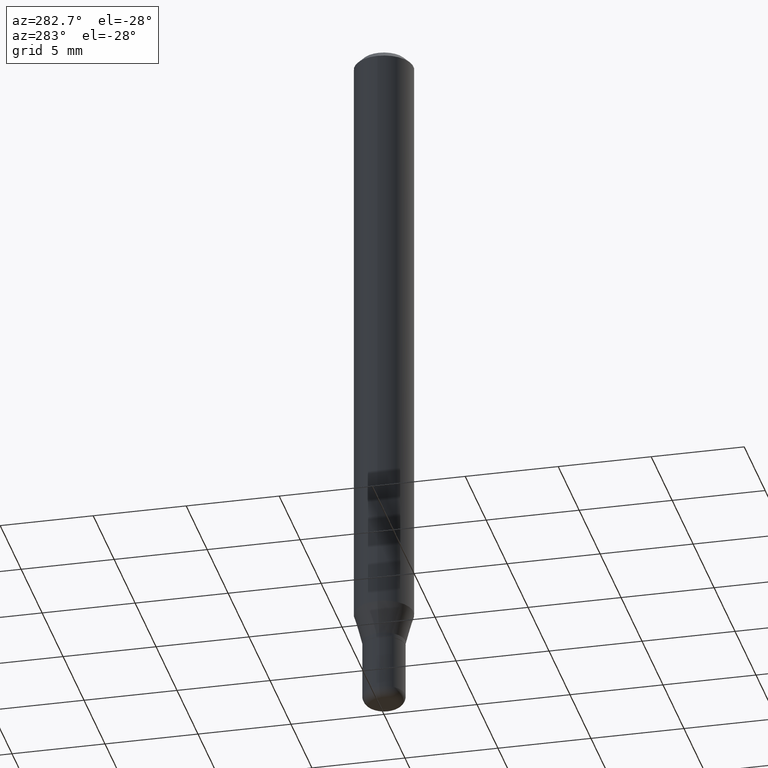
[diagram: clean part render]
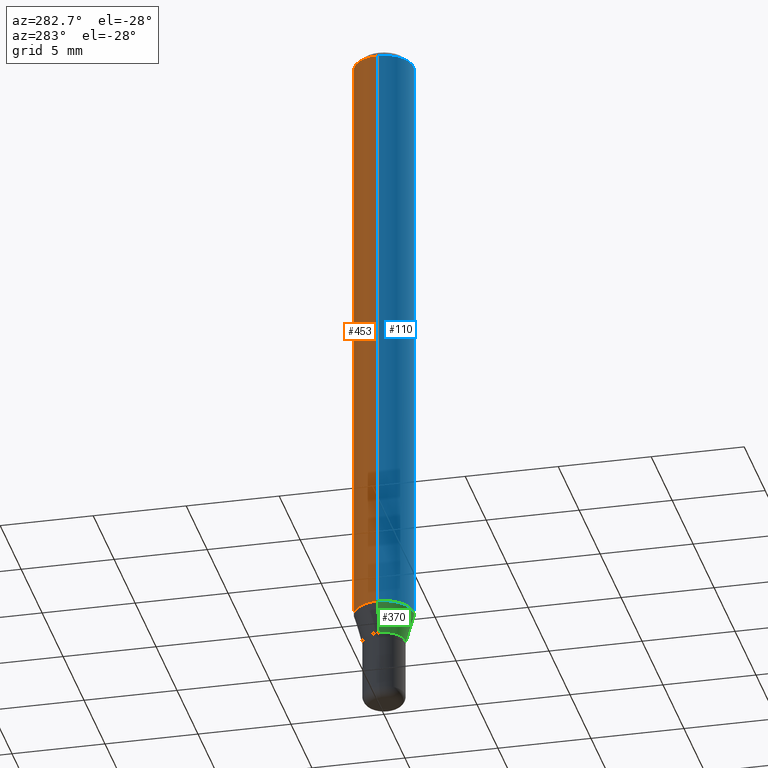
[diagram: same view with three faces highlighted in distinct colors, each labeled with its STEP entity id]
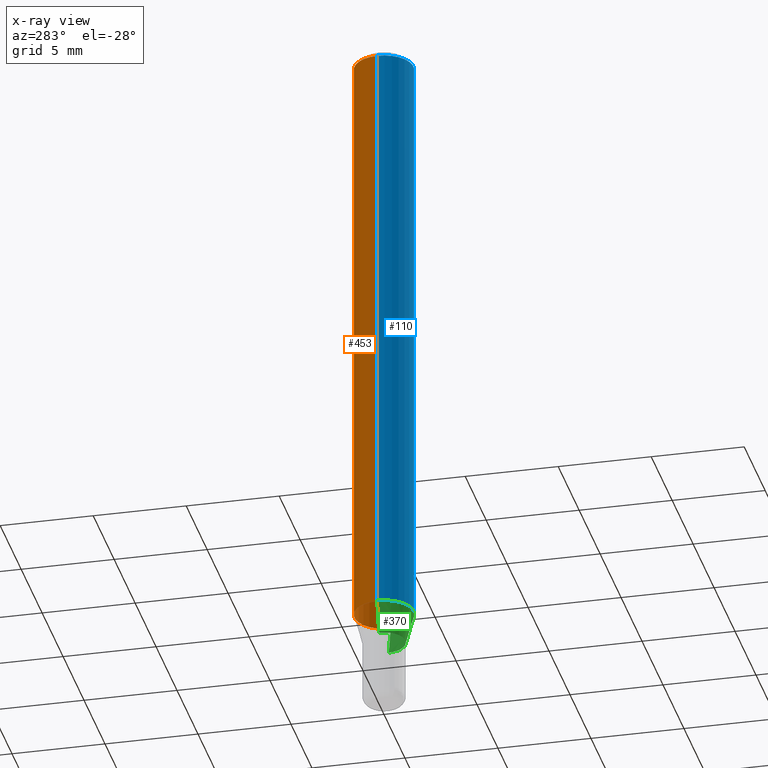
[diagram: x-ray of the same camera — body ghosted, the three highlighted faces saturated]
A machine part, auxiliary view with three faces highlighted in distinct colors.
The next image is the same camera in x-ray (body ghosted, the three faces saturated) — at least one of them is partly hidden behind the body in this view.
Their STEP definitions:

[orange] entity #453 — the highlighted cylindrical surface (edge-blend (fillet) strip) has radius 1.5875 mm, axis along (-0, 0, 1).
#15 = AXIS2_PLACEMENT_3D ( 'NONE', #108, #198, #436 ) ;
#21 = EDGE_CURVE ( 'NONE', #320, #77, #515, .T. ) ;
#34 = AXIS2_PLACEMENT_3D ( 'NONE', #141, #487, #296 ) ;
#48 = ORIENTED_EDGE ( 'NONE', *, *, #263, .T. ) ;
#54 = DIRECTION ( 'NONE',  ( -2.445468806185136597E-29, 3.491481338843145583E-15, 1.000000000000000000 ) ) ;
#61 = CARTESIAN_POINT ( 'NONE',  ( 0.000000000000000000, 0.000000000000000000, 0.000000000000000000 ) ) ;
#77 = VERTEX_POINT ( 'NONE', #254 ) ;
#87 = LINE ( 'NONE', #392, #278 ) ;
#99 = CYLINDRICAL_SURFACE ( 'NONE', #175, 0.06250000000000000000 ) ;
#108 = CARTESIAN_POINT ( 'NONE',  ( 3.153894490303225812E-29, -4.502925463503242152E-15, -1.289689110867545008 ) ) ;
#126 = VERTEX_POINT ( 'NONE', #307 ) ;
#132 = CARTESIAN_POINT ( 'NONE',  ( 0.06250000000000000000, -4.888073874380378612E-16, -0.01499999999999970281 ) ) ;
#141 = CARTESIAN_POINT ( 'NONE',  ( 3.668203209277632395E-31, -5.237222008264614861E-17, -0.01499999999999970281 ) ) ;
#144 = DIRECTION ( 'NONE',  ( -2.445468806185136877E-29, 3.491481338843145188E-15, 1.000000000000000000 ) ) ;
#175 = AXIS2_PLACEMENT_3D ( 'NONE', #61, #54, #418 ) ;
#190 = LINE ( 'NONE', #341, #287 ) ;
#198 = DIRECTION ( 'NONE',  ( -2.445468806185136597E-29, 3.491481338843145583E-15, 1.000000000000000000 ) ) ;
#204 = EDGE_CURVE ( 'NONE', #397, #77, #190, .T. ) ;
#227 = EDGE_LOOP ( 'NONE', ( #48, #489, #237, #354 ) ) ;
#237 = ORIENTED_EDGE ( 'NONE', *, *, #21, .F. ) ;
#254 = CARTESIAN_POINT ( 'NONE',  ( -0.06250000000000000000, -1.833559631942881408E-15, -0.01499999999999970281 ) ) ;
#263 = EDGE_CURVE ( 'NONE', #126, #397, #497, .T. ) ;
#278 = VECTOR ( 'NONE', #360, 39.37007874015748143 ) ;
#287 = VECTOR ( 'NONE', #144, 39.37007874015748143 ) ;
#296 = DIRECTION ( 'NONE',  ( 1.000000000000000000, -6.982962677686266711E-15, 0.000000000000000000 ) ) ;
#307 = CARTESIAN_POINT ( 'NONE',  ( 0.06250000000000000000, -4.939360630858633822E-15, -1.289689110867545008 ) ) ;
#320 = VERTEX_POINT ( 'NONE', #132 ) ;
#341 = CARTESIAN_POINT ( 'NONE',  ( -0.06250000000000000000, 4.440892098500626162E-16, -3.074334431409316114E-30 ) ) ;
#354 = ORIENTED_EDGE ( 'NONE', *, *, #355, .F. ) ;
#355 = EDGE_CURVE ( 'NONE', #126, #320, #87, .T. ) ;
#360 = DIRECTION ( 'NONE',  ( -2.445468806185136877E-29, 3.491481338843145188E-15, 1.000000000000000000 ) ) ;
#392 = CARTESIAN_POINT ( 'NONE',  ( 0.06250000000000000000, -4.364351673553916694E-16, 3.047610484872459871E-30 ) ) ;
#397 = VERTEX_POINT ( 'NONE', #510 ) ;
#418 = DIRECTION ( 'NONE',  ( 1.000000000000000000, -6.982962677686266711E-15, 4.876176775795935793E-29 ) ) ;
#436 = DIRECTION ( 'NONE',  ( 1.000000000000000000, -6.982962677686262766E-15, 0.000000000000000000 ) ) ;
#453 = ADVANCED_FACE ( 'NONE', ( #454 ), #99, .T. ) ;
#454 = FACE_OUTER_BOUND ( 'NONE', #227, .T. ) ;
#487 = DIRECTION ( 'NONE',  ( -2.445468806185136597E-29, 3.491481338843145583E-15, 1.000000000000000000 ) ) ;
#489 = ORIENTED_EDGE ( 'NONE', *, *, #204, .T. ) ;
#497 = CIRCLE ( 'NONE', #15, 0.06250000000000000000 ) ;
#510 = CARTESIAN_POINT ( 'NONE',  ( -0.06250000000000000000, -4.058836253653178747E-15, -1.289689110867545008 ) ) ;
#515 = CIRCLE ( 'NONE', #34, 0.06250000000000000000 ) ;

[blue] entity #110 — the highlighted cylindrical surface (edge-blend (fillet) strip) has radius 1.5875 mm, axis along (-0, 0, 1).
#1 = EDGE_CURVE ( 'NONE', #77, #320, #130, .T. ) ;
#35 = AXIS2_PLACEMENT_3D ( 'NONE', #148, #304, #461 ) ;
#56 = EDGE_LOOP ( 'NONE', ( #452, #315, #161, #375 ) ) ;
#66 = FACE_OUTER_BOUND ( 'NONE', #56, .T. ) ;
#77 = VERTEX_POINT ( 'NONE', #254 ) ;
#87 = LINE ( 'NONE', #392, #278 ) ;
#110 = ADVANCED_FACE ( 'NONE', ( #66 ), #226, .T. ) ;
#126 = VERTEX_POINT ( 'NONE', #307 ) ;
#130 = CIRCLE ( 'NONE', #207, 0.06250000000000000000 ) ;
#132 = CARTESIAN_POINT ( 'NONE',  ( 0.06250000000000000000, -4.888073874380378612E-16, -0.01499999999999970281 ) ) ;
#138 = DIRECTION ( 'NONE',  ( 1.000000000000000000, -6.982962677686266711E-15, 0.000000000000000000 ) ) ;
#144 = DIRECTION ( 'NONE',  ( -2.445468806185136877E-29, 3.491481338843145188E-15, 1.000000000000000000 ) ) ;
#148 = CARTESIAN_POINT ( 'NONE',  ( 3.153894490303225812E-29, -4.502925463503242152E-15, -1.289689110867545008 ) ) ;
#155 = AXIS2_PLACEMENT_3D ( 'NONE', #351, #381, #467 ) ;
#161 = ORIENTED_EDGE ( 'NONE', *, *, #355, .T. ) ;
#190 = LINE ( 'NONE', #341, #287 ) ;
#204 = EDGE_CURVE ( 'NONE', #397, #77, #190, .T. ) ;
#207 = AXIS2_PLACEMENT_3D ( 'NONE', #376, #332, #138 ) ;
#226 = CYLINDRICAL_SURFACE ( 'NONE', #155, 0.06250000000000000000 ) ;
#250 = CIRCLE ( 'NONE', #35, 0.06250000000000000000 ) ;
#254 = CARTESIAN_POINT ( 'NONE',  ( -0.06250000000000000000, -1.833559631942881408E-15, -0.01499999999999970281 ) ) ;
#257 = EDGE_CURVE ( 'NONE', #397, #126, #250, .T. ) ;
#278 = VECTOR ( 'NONE', #360, 39.37007874015748143 ) ;
#287 = VECTOR ( 'NONE', #144, 39.37007874015748143 ) ;
#304 = DIRECTION ( 'NONE',  ( -2.445468806185136597E-29, 3.491481338843145583E-15, 1.000000000000000000 ) ) ;
#307 = CARTESIAN_POINT ( 'NONE',  ( 0.06250000000000000000, -4.939360630858633822E-15, -1.289689110867545008 ) ) ;
#315 = ORIENTED_EDGE ( 'NONE', *, *, #257, .T. ) ;
#320 = VERTEX_POINT ( 'NONE', #132 ) ;
#332 = DIRECTION ( 'NONE',  ( -2.445468806185136597E-29, 3.491481338843145583E-15, 1.000000000000000000 ) ) ;
#341 = CARTESIAN_POINT ( 'NONE',  ( -0.06250000000000000000, 4.440892098500626162E-16, -3.074334431409316114E-30 ) ) ;
#351 = CARTESIAN_POINT ( 'NONE',  ( 0.000000000000000000, 0.000000000000000000, 0.000000000000000000 ) ) ;
#355 = EDGE_CURVE ( 'NONE', #126, #320, #87, .T. ) ;
#360 = DIRECTION ( 'NONE',  ( -2.445468806185136877E-29, 3.491481338843145188E-15, 1.000000000000000000 ) ) ;
#375 = ORIENTED_EDGE ( 'NONE', *, *, #1, .F. ) ;
#376 = CARTESIAN_POINT ( 'NONE',  ( 3.668203209277632395E-31, -5.237222008264614861E-17, -0.01499999999999970281 ) ) ;
#381 = DIRECTION ( 'NONE',  ( -2.445468806185136597E-29, 3.491481338843145583E-15, 1.000000000000000000 ) ) ;
#392 = CARTESIAN_POINT ( 'NONE',  ( 0.06250000000000000000, -4.364351673553916694E-16, 3.047610484872459871E-30 ) ) ;
#397 = VERTEX_POINT ( 'NONE', #510 ) ;
#452 = ORIENTED_EDGE ( 'NONE', *, *, #204, .F. ) ;
#461 = DIRECTION ( 'NONE',  ( 1.000000000000000000, -6.982962677686262766E-15, 0.000000000000000000 ) ) ;
#467 = DIRECTION ( 'NONE',  ( 1.000000000000000000, -6.982962677686266711E-15, 4.876176775795935793E-29 ) ) ;
#510 = CARTESIAN_POINT ( 'NONE',  ( -0.06250000000000000000, -4.058836253653178747E-15, -1.289689110867545008 ) ) ;

[green] entity #370 — the highlighted conical surface has half-angle 15 deg.
#30 = ORIENTED_EDGE ( 'NONE', *, *, #252, .F. ) ;
#32 = CARTESIAN_POINT ( 'NONE',  ( -0.04500000000000003303, -4.411212983040417053E-15, -1.355000000000000204 ) ) ;
#35 = AXIS2_PLACEMENT_3D ( 'NONE', #148, #304, #461 ) ;
#81 = EDGE_LOOP ( 'NONE', ( #30, #435, #361, #318 ) ) ;
#84 = DIRECTION ( 'NONE',  ( 1.000000000000000000, -6.982962677686263555E-15, 0.000000000000000000 ) ) ;
#88 = CONICAL_SURFACE ( 'NONE', #328, 0.04500000000000003303, 0.2617993877991494078 ) ;
#96 = EDGE_CURVE ( 'NONE', #509, #471, #230, .T. ) ;
#118 = CARTESIAN_POINT ( 'NONE',  ( 0.04500000000000003303, -5.045190534628344896E-15, -1.355000000000000204 ) ) ;
#122 = LINE ( 'NONE', #118, #407 ) ;
#126 = VERTEX_POINT ( 'NONE', #307 ) ;
#148 = CARTESIAN_POINT ( 'NONE',  ( 3.153894490303225812E-29, -4.502925463503242152E-15, -1.289689110867545008 ) ) ;
#163 = DIRECTION ( 'NONE',  ( 0.2588190451025206840, 1.565188264969626504E-15, 0.9659258262890682012 ) ) ;
#167 = FACE_OUTER_BOUND ( 'NONE', #81, .T. ) ;
#208 = CARTESIAN_POINT ( 'NONE',  ( 0.04500000000000003303, -5.045190534628344896E-15, -1.355000000000000204 ) ) ;
#230 = CIRCLE ( 'NONE', #301, 0.04500000000000003303 ) ;
#250 = CIRCLE ( 'NONE', #35, 0.06250000000000000000 ) ;
#251 = CARTESIAN_POINT ( 'NONE',  ( -0.04500000000000003303, -4.235024618346798294E-15, -1.355000000000000204 ) ) ;
#252 = EDGE_CURVE ( 'NONE', #509, #397, #387, .T. ) ;
#257 = EDGE_CURVE ( 'NONE', #397, #126, #250, .T. ) ;
#275 = DIRECTION ( 'NONE',  ( -0.2588190451025206840, 5.211531920934545520E-15, 0.9659258262890682012 ) ) ;
#284 = DIRECTION ( 'NONE',  ( 1.000000000000000000, -6.982962677686263555E-15, 0.000000000000000000 ) ) ;
#298 = EDGE_CURVE ( 'NONE', #471, #126, #122, .T. ) ;
#301 = AXIS2_PLACEMENT_3D ( 'NONE', #372, #455, #284 ) ;
#304 = DIRECTION ( 'NONE',  ( -2.445468806185136597E-29, 3.491481338843145583E-15, 1.000000000000000000 ) ) ;
#307 = CARTESIAN_POINT ( 'NONE',  ( 0.06250000000000000000, -4.939360630858633822E-15, -1.289689110867545008 ) ) ;
#318 = ORIENTED_EDGE ( 'NONE', *, *, #257, .F. ) ;
#321 = CARTESIAN_POINT ( 'NONE',  ( 3.313610232380860851E-29, -4.730957214132463209E-15, -1.355000000000000204 ) ) ;
#328 = AXIS2_PLACEMENT_3D ( 'NONE', #321, #446, #84 ) ;
#361 = ORIENTED_EDGE ( 'NONE', *, *, #298, .T. ) ;
#370 = ADVANCED_FACE ( 'NONE', ( #167 ), #88, .T. ) ;
#372 = CARTESIAN_POINT ( 'NONE',  ( 3.313610232380860851E-29, -4.730957214132463209E-15, -1.355000000000000204 ) ) ;
#387 = LINE ( 'NONE', #32, #390 ) ;
#390 = VECTOR ( 'NONE', #275, 39.37007874015748854 ) ;
#397 = VERTEX_POINT ( 'NONE', #510 ) ;
#407 = VECTOR ( 'NONE', #163, 39.37007874015748854 ) ;
#435 = ORIENTED_EDGE ( 'NONE', *, *, #96, .T. ) ;
#446 = DIRECTION ( 'NONE',  ( -2.445468806185136597E-29, 3.491481338843145583E-15, 1.000000000000000000 ) ) ;
#455 = DIRECTION ( 'NONE',  ( -2.445468806185136597E-29, 3.491481338843145583E-15, 1.000000000000000000 ) ) ;
#461 = DIRECTION ( 'NONE',  ( 1.000000000000000000, -6.982962677686262766E-15, 0.000000000000000000 ) ) ;
#471 = VERTEX_POINT ( 'NONE', #208 ) ;
#509 = VERTEX_POINT ( 'NONE', #251 ) ;
#510 = CARTESIAN_POINT ( 'NONE',  ( -0.06250000000000000000, -4.058836253653178747E-15, -1.289689110867545008 ) ) ;